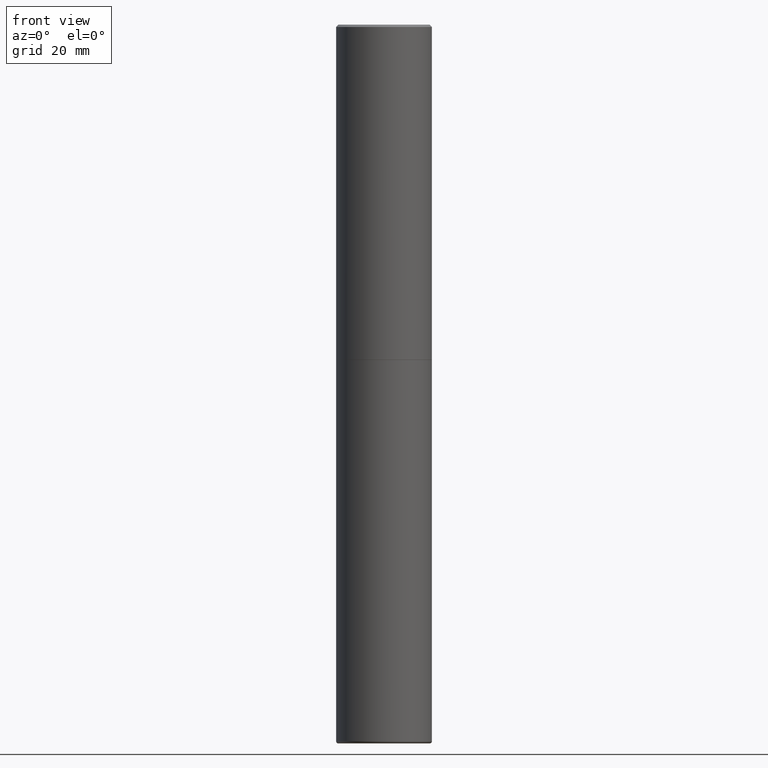
[diagram: clean part render]
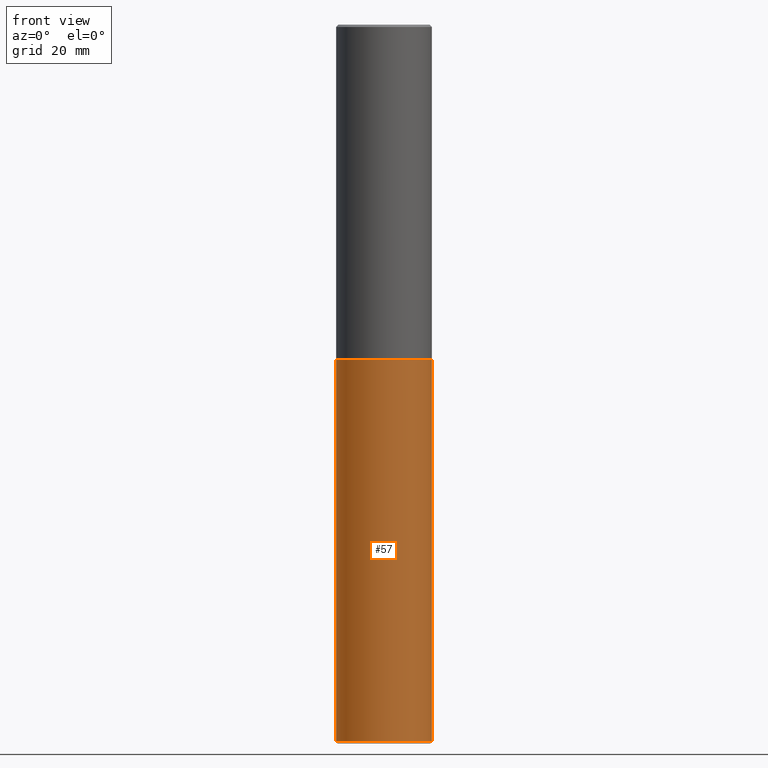
[diagram: same view with one face highlighted and labeled with its STEP entity id]
A machine part, front view. The second image highlights one B-rep face of the part: STEP entity #57.
In plain terms, the highlighted cylindrical surface (partial cylindrical patch) has radius 10 mm, axis along (-0, 0, 1).
Its self-contained STEP definition (entity closure, byte-faithful):
#13 = DIRECTION ( 'NONE',  ( -2.445468806185136877E-29, 3.491481338843145188E-15, 1.000000000000000000 ) ) ;
#25 = CARTESIAN_POINT ( 'NONE',  ( -0.3936999999999996613, -1.775275411347546994E-14, -5.885799999999998811 ) ) ;
#36 = EDGE_CURVE ( 'NONE', #72, #305, #353, .T. ) ;
#41 = ORIENTED_EDGE ( 'NONE', *, *, #36, .F. ) ;
#42 = CIRCLE ( 'NONE', #56, 0.3937000000000000499 ) ;
#46 = CARTESIAN_POINT ( 'NONE',  ( 0.3936999999999999389, -2.749192406205082822E-15, 1.919750796630859611E-29 ) ) ;
#53 = DIRECTION ( 'NONE',  ( 1.000000000000000000, -6.982962677686266711E-15, 4.876176775795935793E-29 ) ) ;
#56 = AXIS2_PLACEMENT_3D ( 'NONE', #115, #278, #308 ) ;
#57 = ADVANCED_FACE ( 'NONE', ( #341 ), #270, .T. ) ;
#72 = VERTEX_POINT ( 'NONE', #25 ) ;
#73 = EDGE_CURVE ( 'NONE', #305, #361, #42, .T. ) ;
#115 = CARTESIAN_POINT ( 'NONE',  ( 6.739467482965614869E-29, -9.622173421717819657E-15, -2.755899999999998240 ) ) ;
#134 = ORIENTED_EDGE ( 'NONE', *, *, #192, .T. ) ;
#164 = CIRCLE ( 'NONE', #264, 0.3936999999999999389 ) ;
#172 = VECTOR ( 'NONE', #401, 39.37007874015748143 ) ;
#192 = EDGE_CURVE ( 'NONE', #72, #257, #164, .T. ) ;
#208 = LINE ( 'NONE', #46, #172 ) ;
#210 = VECTOR ( 'NONE', #13, 39.37007874015748143 ) ;
#216 = CARTESIAN_POINT ( 'NONE',  ( -0.3937000000000000499, -1.228876039225288859E-14, -2.755899999999998240 ) ) ;
#252 = DIRECTION ( 'NONE',  ( -2.445468806185136597E-29, 3.491481338843145583E-15, 1.000000000000000000 ) ) ;
#257 = VERTEX_POINT ( 'NONE', #306 ) ;
#263 = CARTESIAN_POINT ( 'NONE',  ( -0.3936999999999999389, 2.797406750687513998E-15, -1.936584745033356455E-29 ) ) ;
#264 = AXIS2_PLACEMENT_3D ( 'NONE', #373, #385, #269 ) ;
#265 = EDGE_LOOP ( 'NONE', ( #41, #134, #363, #326 ) ) ;
#269 = DIRECTION ( 'NONE',  ( 1.000000000000000000, -6.982962677686269866E-15, 0.000000000000000000 ) ) ;
#270 = CYLINDRICAL_SURFACE ( 'NONE', #344, 0.3936999999999999389 ) ;
#276 = EDGE_CURVE ( 'NONE', #257, #361, #208, .T. ) ;
#278 = DIRECTION ( 'NONE',  ( -2.445468806185136597E-29, 3.491481338843145583E-15, 1.000000000000000000 ) ) ;
#305 = VERTEX_POINT ( 'NONE', #216 ) ;
#306 = CARTESIAN_POINT ( 'NONE',  ( 0.3936999999999996613, -2.329935327036806400E-14, -5.885799999999998811 ) ) ;
#308 = DIRECTION ( 'NONE',  ( 1.000000000000000000, -6.982962677686267499E-15, 0.000000000000000000 ) ) ;
#312 = CARTESIAN_POINT ( 'NONE',  ( 0.000000000000000000, 0.000000000000000000, 0.000000000000000000 ) ) ;
#326 = ORIENTED_EDGE ( 'NONE', *, *, #73, .F. ) ;
#341 = FACE_OUTER_BOUND ( 'NONE', #265, .T. ) ;
#344 = AXIS2_PLACEMENT_3D ( 'NONE', #312, #252, #53 ) ;
#353 = LINE ( 'NONE', #263, #210 ) ;
#361 = VERTEX_POINT ( 'NONE', #362 ) ;
#362 = CARTESIAN_POINT ( 'NONE',  ( 0.3937000000000000499, -1.237136582792290287E-14, -2.755899999999998240 ) ) ;
#363 = ORIENTED_EDGE ( 'NONE', *, *, #276, .T. ) ;
#373 = CARTESIAN_POINT ( 'NONE',  ( 1.439354029944447260E-28, -2.055016086416298394E-14, -5.885799999999998811 ) ) ;
#385 = DIRECTION ( 'NONE',  ( -2.445468806185136597E-29, 3.491481338843145583E-15, 1.000000000000000000 ) ) ;
#401 = DIRECTION ( 'NONE',  ( -2.445468806185136877E-29, 3.491481338843145188E-15, 1.000000000000000000 ) ) ;